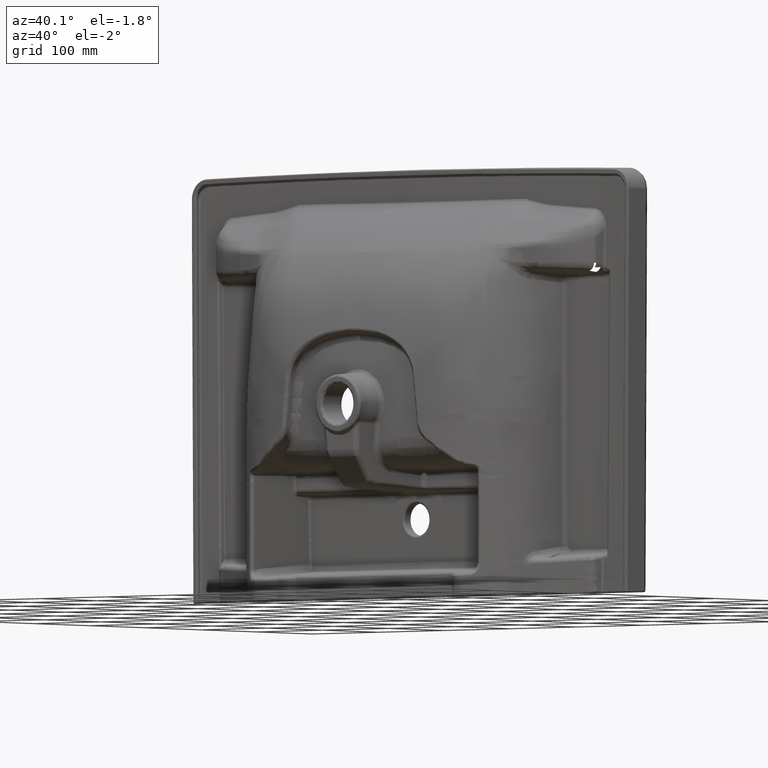
[diagram: clean part render]
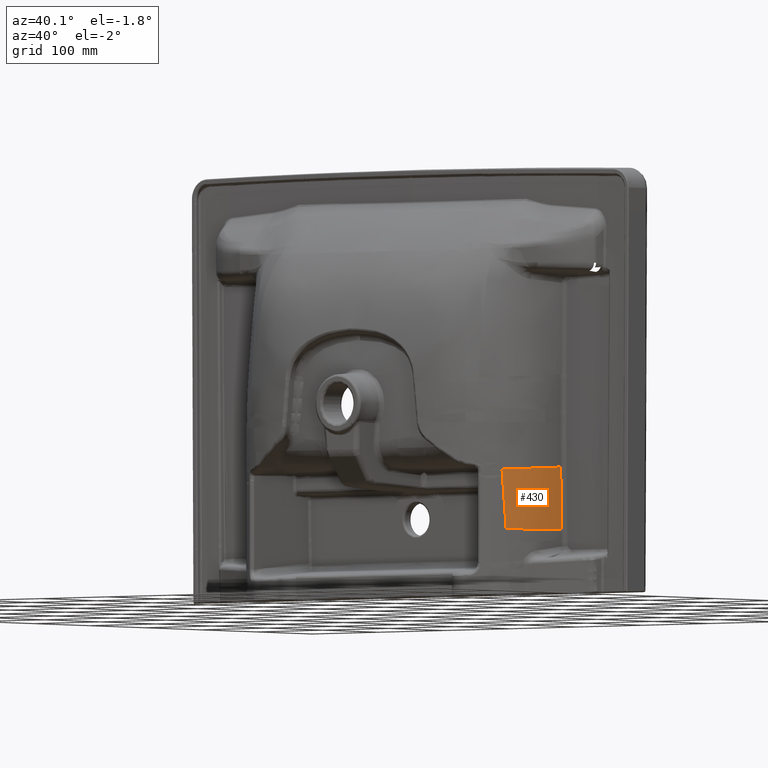
[diagram: same view with one face highlighted and labeled with its STEP entity id]
A machine part, auxiliary view. The second image highlights one B-rep face of the part: STEP entity #430.
In plain terms, the highlighted face is a freeform B-spline surface patch.
Its self-contained STEP definition (entity closure, byte-faithful):
#430=ADVANCED_FACE('',(#2036),#22189,.T.);
#2036=FACE_OUTER_BOUND('',#3642,.T.);
#3642=EDGE_LOOP('',(#6728,#6729,#6730,#6731,#6732,#6733,#6734,#6735));
#6728=ORIENTED_EDGE('',*,*,#13240,.T.);
#6729=ORIENTED_EDGE('',*,*,#15940,.T.);
#6730=ORIENTED_EDGE('',*,*,#13241,.T.);
#6731=ORIENTED_EDGE('',*,*,#13242,.T.);
#6732=ORIENTED_EDGE('',*,*,#13243,.T.);
#6733=ORIENTED_EDGE('',*,*,#13244,.T.);
#6734=ORIENTED_EDGE('',*,*,#13245,.T.);
#6735=ORIENTED_EDGE('',*,*,#15941,.F.);
#13240=EDGE_CURVE('',#20416,#20465,#16810,.T.);
#13241=EDGE_CURVE('',#20466,#20467,#16811,.T.);
#13242=EDGE_CURVE('',#20467,#20468,#16812,.T.);
#13243=EDGE_CURVE('',#20468,#20469,#16813,.T.);
#13244=EDGE_CURVE('',#20469,#20470,#16814,.T.);
#13245=EDGE_CURVE('',#20470,#20417,#16815,.T.);
#15940=EDGE_CURVE('',#20465,#20466,#19159,.T.);
#15941=EDGE_CURVE('',#20416,#20417,#19160,.T.);
#16810=B_SPLINE_CURVE_WITH_KNOTS('',3,(#109642,#109643,#109644,#109645),
 .UNSPECIFIED.,.F.,.F.,(4,4),(0.,0.999999999999992),.UNSPECIFIED.);
#16811=B_SPLINE_CURVE_WITH_KNOTS('',3,(#109646,#109647,#109648,#109649),
 .UNSPECIFIED.,.F.,.F.,(4,4),(0.,1.),.UNSPECIFIED.);
#16812=B_SPLINE_CURVE_WITH_KNOTS('',3,(#109650,#109651,#109652,#109653),
 .UNSPECIFIED.,.F.,.F.,(4,4),(0.00416152848909431,1.),.UNSPECIFIED.);
#16813=B_SPLINE_CURVE_WITH_KNOTS('',3,(#109654,#109655,#109656,#109657),
 .UNSPECIFIED.,.F.,.F.,(4,4),(-0.999999655900531,0.),.UNSPECIFIED.);
#16814=B_SPLINE_CURVE_WITH_KNOTS('',3,(#109658,#109659,#109660,#109661),
 .UNSPECIFIED.,.F.,.F.,(4,4),(-1.,-5.89918769296758E-08),.UNSPECIFIED.);
#16815=B_SPLINE_CURVE_WITH_KNOTS('',3,(#109662,#109663,#109664,#109665),
 .UNSPECIFIED.,.F.,.F.,(4,4),(-1.,-1.27912850751718E-08),.UNSPECIFIED.);
#19159=B_SPLINE_CURVE_WITH_KNOTS('',3,(#123480,#123481,#123482,#123483,
#123484,#123485,#123486,#123487,#123488),.UNSPECIFIED.,.F.,.F.,(4,3,2,4),
(-1.,0.,0.499999529747895,1.),.UNSPECIFIED.);
#19160=B_SPLINE_CURVE_WITH_KNOTS('',3,(#123489,#123490,#123491,#123492,
#123493,#123494,#123495,#123496,#123497,#123498,#123499,#123500,#123501,
#123502,#123503,#123504,#123505),.UNSPECIFIED.,.F.,.F.,(4,1,1,3,1,1,1,3,
1,1,4),(-1.,-0.679598145082942,-0.0156626369492367,0.,0.0251752747111996,
0.373377896693717,0.721580518676234,0.999999999999991,1.13643408671328,
1.81721117398138,1.99999999990756),.UNSPECIFIED.);
#20416=VERTEX_POINT('',#103533);
#20417=VERTEX_POINT('',#103534);
#20465=VERTEX_POINT('',#103582);
#20466=VERTEX_POINT('',#103583);
#20467=VERTEX_POINT('',#103584);
#20468=VERTEX_POINT('',#103585);
#20469=VERTEX_POINT('',#103586);
#20470=VERTEX_POINT('',#103587);
#22189=B_SPLINE_SURFACE_WITH_KNOTS('',3,3,((#45061,#45062,#45063,#45064),
(#45065,#45066,#45067,#45068),(#45069,#45070,#45071,#45072),(#45073,#45074,
#45075,#45076),(#45077,#45078,#45079,#45080),(#45081,#45082,#45083,#45084),
(#45085,#45086,#45087,#45088),(#45089,#45090,#45091,#45092),(#45093,#45094,
#45095,#45096),(#45097,#45098,#45099,#45100),(#45101,#45102,#45103,#45104),
(#45105,#45106,#45107,#45108)),.UNSPECIFIED.,.F.,.F.,.F.,(4,1,1,1,1,1,1,
1,1,4),(4,4),(0.,8.30288097691919,19.9859866312603,31.6690922856013,43.3521979399423,
55.0353035942834,56.2559026244937,72.1903400054714,97.6918257578719,102.647521633358),
(0.,81.0260696278597),.UNSPECIFIED.);
#45061=CARTESIAN_POINT('',(-991.291728447013,-119.394045348223,-179.877222257996));
#45062=CARTESIAN_POINT('',(-991.291728447013,-119.394045348224,-152.868532382045));
#45063=CARTESIAN_POINT('',(-991.29172844701,-119.394045348226,-125.859842506092));
#45064=CARTESIAN_POINT('',(-991.291728447013,-119.394045348223,-98.8511526301363));
#45065=CARTESIAN_POINT('',(-989.414232379907,-117.365803387532,-179.877222220977));
#45066=CARTESIAN_POINT('',(-989.414232379911,-117.365803387533,-152.868532345032));
#45067=CARTESIAN_POINT('',(-989.414232379904,-117.365803387534,-125.859842469073));
#45068=CARTESIAN_POINT('',(-989.414232379907,-117.365803387532,-98.8511525931183));
#45069=CARTESIAN_POINT('',(-985.060944732228,-112.333530915278,-179.87722209143));
#45070=CARTESIAN_POINT('',(-985.060944732222,-112.333530915281,-152.868532215477));
#45071=CARTESIAN_POINT('',(-985.060944732224,-112.33353091528,-125.859842339525));
#45072=CARTESIAN_POINT('',(-985.060944732228,-112.333530915278,-98.8511524635706));
#45073=CARTESIAN_POINT('',(-978.896363528756,-103.761274967496,-179.877222085999));
#45074=CARTESIAN_POINT('',(-978.896363528751,-103.761274967496,-152.868532210051));
#45075=CARTESIAN_POINT('',(-978.89636352875,-103.761274967498,-125.859842334095));
#45076=CARTESIAN_POINT('',(-978.896363528756,-103.761274967496,-98.85115245814));
#45077=CARTESIAN_POINT('',(-972.963665522741,-93.6836112382128,-179.877222091577));
#45078=CARTESIAN_POINT('',(-972.963665522735,-93.6836112382133,-152.868532215627));
#45079=CARTESIAN_POINT('',(-972.963665522735,-93.6836112382154,-125.859842339673));
#45080=CARTESIAN_POINT('',(-972.963665522741,-93.6836112382126,-98.8511524637174));
#45081=CARTESIAN_POINT('',(-968.608922299728,-82.8202802011728,-179.877222041702));
#45082=CARTESIAN_POINT('',(-968.60892229972,-82.8202802011739,-152.868532165752));
#45083=CARTESIAN_POINT('',(-968.608922299723,-82.8202802011737,-125.859842289797));
#45084=CARTESIAN_POINT('',(-968.608922299728,-82.8202802011728,-98.8511524138428));
#45085=CARTESIAN_POINT('',(-966.571753733162,-74.8781029143791,-179.877221956746));
#45086=CARTESIAN_POINT('',(-966.57175373316,-74.8781029143809,-152.868532080801));
#45087=CARTESIAN_POINT('',(-966.57175373316,-74.8781029143812,-125.859842204841));
#45088=CARTESIAN_POINT('',(-966.571753733162,-74.8781029143793,-98.8511523288873));
#45089=CARTESIAN_POINT('',(-964.594528522362,-65.481438120604,-179.877221835079));
#45090=CARTESIAN_POINT('',(-964.594528522345,-65.4814381206054,-152.868531959127));
#45091=CARTESIAN_POINT('',(-964.594528522357,-65.4814381206055,-125.859842083175));
#45092=CARTESIAN_POINT('',(-964.594528522362,-65.481438120604,-98.8511522072199));
#45093=CARTESIAN_POINT('',(-962.456147565258,-51.4297175442201,-179.877221612978));
#45094=CARTESIAN_POINT('',(-962.456147565249,-51.4297175442285,-152.868531737009));
#45095=CARTESIAN_POINT('',(-962.456147565255,-51.4297175442142,-125.859841861096));
#45096=CARTESIAN_POINT('',(-962.456147565258,-51.4297175442302,-98.8511519851233));
#45097=CARTESIAN_POINT('',(-960.130525371368,-36.1475980854739,-179.877221371428));
#45098=CARTESIAN_POINT('',(-960.130525371371,-36.1475980854789,-152.868531495448));
#45099=CARTESIAN_POINT('',(-960.130525371363,-36.1475980854586,-125.859841619575));
#45100=CARTESIAN_POINT('',(-960.130525371368,-36.1475980854952,-98.8511517435794));
#45101=CARTESIAN_POINT('',(-958.603700072523,-26.1145296572056,-179.877221212845));
#45102=CARTESIAN_POINT('',(-958.603700072517,-26.1145296572102,-152.868531336851));
#45103=CARTESIAN_POINT('',(-958.603700072521,-26.1145296571855,-125.859841461008));
#45104=CARTESIAN_POINT('',(-958.603700072523,-26.1145296572341,-98.851151585));
#45105=CARTESIAN_POINT('',(-958.355269934484,-24.4820465064037,-179.877221187042));
#45106=CARTESIAN_POINT('',(-958.355269934481,-24.4820465064107,-152.868531311043));
#45107=CARTESIAN_POINT('',(-958.355269934483,-24.4820465063828,-125.859841435208));
#45108=CARTESIAN_POINT('',(-958.355269934484,-24.4820465064334,-98.8511515591975));
#103533=CARTESIAN_POINT('',(-961.775893440878,-46.9825121129539,-176.169468884396));
#103534=CARTESIAN_POINT('',(-987.869999295553,-115.535113593412,-176.169485208321));
#103582=CARTESIAN_POINT('',(-961.95630252862,-48.1266625083471,-103.500490522633));
#103583=CARTESIAN_POINT('',(-991.068590414893,-119.152344140634,-107.149454076977));
#103584=CARTESIAN_POINT('',(-990.769822615245,-118.826673776807,-113.397854074901));
#103585=CARTESIAN_POINT('',(-990.601016322379,-118.641616679992,-116.9308508586));
#103586=CARTESIAN_POINT('',(-989.228365246073,-117.107595192019,-146.164755924707));
#103587=CARTESIAN_POINT('',(-989.096724654956,-116.957648533631,-149.035812958326));
#109642=CARTESIAN_POINT('',(-961.775893440878,-46.9825121129539,-176.169468884396));
#109643=CARTESIAN_POINT('',(-961.83628273453,-47.3655576363132,-151.946500303943));
#109644=CARTESIAN_POINT('',(-961.895206928957,-47.7389757079773,-127.723381213978));
#109645=CARTESIAN_POINT('',(-961.95630252862,-48.1266625083471,-103.500490522633));
#109646=CARTESIAN_POINT('',(-991.068590414893,-119.152344140634,-107.149454076977));
#109647=CARTESIAN_POINT('',(-990.968645187346,-119.043793171646,-109.232237527095));
#109648=CARTESIAN_POINT('',(-990.869053132761,-118.935232828149,-111.315037198261));
#109649=CARTESIAN_POINT('',(-990.769822615245,-118.826673776807,-113.397854074901));
#109650=CARTESIAN_POINT('',(-990.769822615245,-118.826673776807,-113.397854074901));
#109651=CARTESIAN_POINT('',(-990.713437805071,-118.764988302824,-114.575514186473));
#109652=CARTESIAN_POINT('',(-990.657169132251,-118.703302604724,-115.753179783697));
#109653=CARTESIAN_POINT('',(-990.601016322379,-118.641616679992,-116.9308508586));
#109654=CARTESIAN_POINT('',(-990.601016322379,-118.641616679992,-116.9308508586));
#109655=CARTESIAN_POINT('',(-990.139073740617,-118.134155782036,-126.675485870361));
#109656=CARTESIAN_POINT('',(-989.681467847914,-117.622829810168,-136.42012090304));
#109657=CARTESIAN_POINT('',(-989.228365246073,-117.107595192019,-146.164755924707));
#109658=CARTESIAN_POINT('',(-989.228365246073,-117.107595192019,-146.164755924707));
#109659=CARTESIAN_POINT('',(-989.184442682442,-117.057649715633,-147.121774936106));
#109660=CARTESIAN_POINT('',(-989.140562434451,-117.007667508994,-148.078793947283));
#109661=CARTESIAN_POINT('',(-989.096724654956,-116.957648533631,-149.035812958326));
#109662=CARTESIAN_POINT('',(-989.096724654956,-116.957648533631,-149.035812958326));
#109663=CARTESIAN_POINT('',(-988.684009702778,-116.486740123969,-158.0803682309));
#109664=CARTESIAN_POINT('',(-988.275059080199,-116.012572906554,-167.124923507537));
#109665=CARTESIAN_POINT('',(-987.869999295553,-115.535113593412,-176.169485208321));
#123480=CARTESIAN_POINT('',(-961.95630252862,-48.1266625083471,-103.500490522633));
#123481=CARTESIAN_POINT('',(-963.096984484613,-55.6379754900931,-103.887264586284));
#123482=CARTESIAN_POINT('',(-964.122226824867,-63.1714525649696,-104.274041847036));
#123483=CARTESIAN_POINT('',(-965.67260326531,-70.6017289280709,-104.660813841343));
#123484=CARTESIAN_POINT('',(-967.561556018901,-79.6602145138385,-105.122423426006));
#123485=CARTESIAN_POINT('',(-970.420876279605,-88.5675550836969,-105.570802548248));
#123486=CARTESIAN_POINT('',(-979.287335901335,-104.811317342869,-106.410537160248));
#123487=CARTESIAN_POINT('',(-984.79926489753,-112.343201005589,-106.801892621819));
#123488=CARTESIAN_POINT('',(-991.068590414893,-119.152344140634,-107.149454076977));
#123489=CARTESIAN_POINT('',(-961.775893440878,-46.9825121129539,-176.169468884396));
#123490=CARTESIAN_POINT('',(-962.16174021091,-49.5155426814578,-176.169473377613));
#123491=CARTESIAN_POINT('',(-963.347137193872,-57.2975095835331,-176.169475468593));
#123492=CARTESIAN_POINT('',(-964.551396046027,-65.2033020426919,-176.169477592844));
#123493=CARTESIAN_POINT('',(-965.655646073803,-70.5206415974462,-176.16947901912));
#123494=CARTESIAN_POINT('',(-965.68124889541,-70.6431599734188,-176.169482853039));
#123495=CARTESIAN_POINT('',(-965.738741436906,-70.9184785869596,-176.169486641544));
#123496=CARTESIAN_POINT('',(-966.602899605173,-74.9995293104653,-176.169486454645));
#123497=CARTESIAN_POINT('',(-968.608922299728,-82.8202802011728,-176.169486071986));
#123498=CARTESIAN_POINT('',(-972.672754771663,-92.9579060406046,-176.16948548314));
#123499=CARTESIAN_POINT('',(-976.136714018512,-99.0503542416023,-176.169485079685));
#123500=CARTESIAN_POINT('',(-977.785330624708,-101.690255515256,-176.1694849317));
#123501=CARTESIAN_POINT('',(-978.198539900397,-102.351920349475,-176.169484966987));
#123502=CARTESIAN_POINT('',(-980.714782605448,-106.289906391308,-176.169484997688));
#123503=CARTESIAN_POINT('',(-984.055358445812,-110.93519699117,-176.169485038752));
#123504=CARTESIAN_POINT('',(-987.194689459623,-114.739100300609,-176.169485143443));
#123505=CARTESIAN_POINT('',(-987.869999295553,-115.535113593412,-176.169485208321));